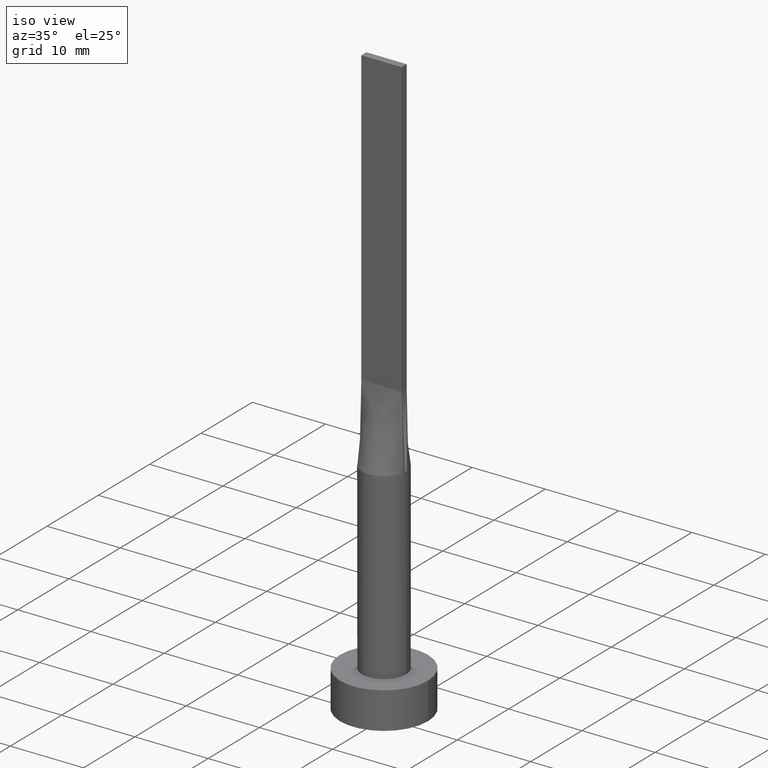
[diagram: clean part render]
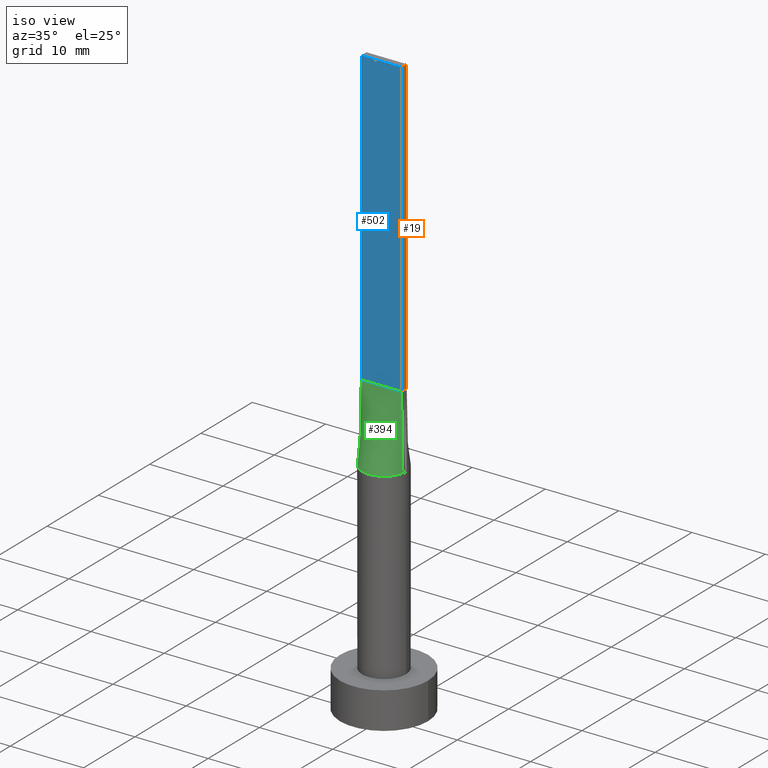
[diagram: same view with three faces highlighted in distinct colors, each labeled with its STEP entity id]
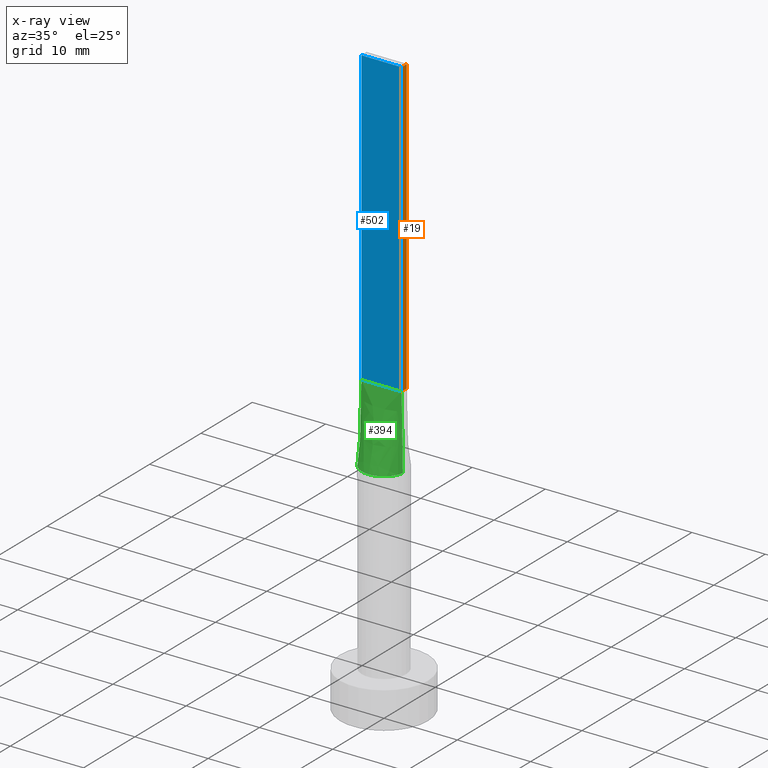
[diagram: x-ray of the same camera — body ghosted, the three highlighted faces saturated]
A machine part, iso view with three faces highlighted in distinct colors.
The next image is the same camera in x-ray (body ghosted, the three faces saturated) — at least one of them is partly hidden behind the body in this view.
Their STEP definitions:

[orange] entity #19 — the highlighted planar face has unit normal (-1, 0, 0).
#19 = ADVANCED_FACE ( 'NONE', ( #361 ), #216, .F. ) ;
#42 = CARTESIAN_POINT ( 'NONE',  ( 2.750000000000000000, 0.5000000000000002220, 80.00000000000000000 ) ) ;
#55 = CARTESIAN_POINT ( 'NONE',  ( 2.750000000000000000, 0.5000000000000002220, 80.00000000000000000 ) ) ;
#78 = DIRECTION ( 'NONE',  ( -1.000000000000000000, 0.000000000000000000, 0.000000000000000000 ) ) ;
#85 = EDGE_LOOP ( 'NONE', ( #296, #117, #448, #162 ) ) ;
#97 = LINE ( 'NONE', #55, #264 ) ;
#111 = LINE ( 'NONE', #477, #539 ) ;
#117 = ORIENTED_EDGE ( 'NONE', *, *, #217, .F. ) ;
#129 = VERTEX_POINT ( 'NONE', #147 ) ;
#147 = CARTESIAN_POINT ( 'NONE',  ( 2.750000000000000000, 0.5000000000000002220, 40.00000000000000000 ) ) ;
#162 = ORIENTED_EDGE ( 'NONE', *, *, #418, .T. ) ;
#216 = PLANE ( 'NONE',  #427 ) ;
#217 = EDGE_CURVE ( 'NONE', #426, #129, #97, .T. ) ;
#264 = VECTOR ( 'NONE', #417, 1000.000000000000000 ) ;
#296 = ORIENTED_EDGE ( 'NONE', *, *, #328, .T. ) ;
#311 = LINE ( 'NONE', #488, #408 ) ;
#314 = CARTESIAN_POINT ( 'NONE',  ( 2.750000000000000000, -0.4999999999999997780, 40.00000000000000000 ) ) ;
#315 = VERTEX_POINT ( 'NONE', #423 ) ;
#328 = EDGE_CURVE ( 'NONE', #396, #129, #111, .T. ) ;
#357 = LINE ( 'NONE', #534, #581 ) ;
#361 = FACE_OUTER_BOUND ( 'NONE', #85, .T. ) ;
#380 = DIRECTION ( 'NONE',  ( -0.000000000000000000, 1.000000000000000000, -0.000000000000000000 ) ) ;
#395 = DIRECTION ( 'NONE',  ( 0.000000000000000000, 1.000000000000000000, 0.000000000000000000 ) ) ;
#396 = VERTEX_POINT ( 'NONE', #314 ) ;
#408 = VECTOR ( 'NONE', #527, 1000.000000000000000 ) ;
#410 = EDGE_CURVE ( 'NONE', #315, #426, #357, .T. ) ;
#417 = DIRECTION ( 'NONE',  ( -0.000000000000000000, -0.000000000000000000, -1.000000000000000000 ) ) ;
#418 = EDGE_CURVE ( 'NONE', #315, #396, #311, .T. ) ;
#423 = CARTESIAN_POINT ( 'NONE',  ( 2.750000000000000000, -0.4999999999999997780, 80.00000000000000000 ) ) ;
#426 = VERTEX_POINT ( 'NONE', #42 ) ;
#427 = AXIS2_PLACEMENT_3D ( 'NONE', #528, #78, #455 ) ;
#448 = ORIENTED_EDGE ( 'NONE', *, *, #410, .F. ) ;
#455 = DIRECTION ( 'NONE',  ( 0.000000000000000000, 0.000000000000000000, 1.000000000000000000 ) ) ;
#477 = CARTESIAN_POINT ( 'NONE',  ( 2.750000000000000000, 0.5000000000000002220, 40.00000000000000000 ) ) ;
#488 = CARTESIAN_POINT ( 'NONE',  ( 2.750000000000000000, -0.4999999999999997780, 80.00000000000000000 ) ) ;
#527 = DIRECTION ( 'NONE',  ( -0.000000000000000000, -0.000000000000000000, -1.000000000000000000 ) ) ;
#528 = CARTESIAN_POINT ( 'NONE',  ( 2.750000000000000000, -0.4999999999999997780, 80.00000000000000000 ) ) ;
#534 = CARTESIAN_POINT ( 'NONE',  ( 2.750000000000000000, -0.4999999999999997780, 80.00000000000000000 ) ) ;
#539 = VECTOR ( 'NONE', #380, 1000.000000000000000 ) ;
#581 = VECTOR ( 'NONE', #395, 1000.000000000000000 ) ;

[blue] entity #502 — the highlighted planar face has unit normal (0, 1, -0).
#32 = EDGE_CURVE ( 'NONE', #335, #519, #494, .T. ) ;
#45 = CARTESIAN_POINT ( 'NONE',  ( -2.750000000000000000, -0.4999999999999994449, 80.00000000000000000 ) ) ;
#47 = DIRECTION ( 'NONE',  ( 1.000000000000000000, -5.913830031739115543E-17, 0.000000000000000000 ) ) ;
#82 = ORIENTED_EDGE ( 'NONE', *, *, #418, .F. ) ;
#130 = VECTOR ( 'NONE', #571, 1000.000000000000000 ) ;
#136 = FACE_OUTER_BOUND ( 'NONE', #339, .T. ) ;
#139 = PLANE ( 'NONE',  #523 ) ;
#196 = CARTESIAN_POINT ( 'NONE',  ( -2.750000000000000000, -0.4999999999999994449, 80.00000000000000000 ) ) ;
#204 = ORIENTED_EDGE ( 'NONE', *, *, #439, .T. ) ;
#220 = VECTOR ( 'NONE', #269, 1000.000000000000000 ) ;
#226 = EDGE_CURVE ( 'NONE', #335, #315, #278, .T. ) ;
#263 = ORIENTED_EDGE ( 'NONE', *, *, #32, .T. ) ;
#269 = DIRECTION ( 'NONE',  ( 1.000000000000000000, -5.913830031739115543E-17, 0.000000000000000000 ) ) ;
#278 = LINE ( 'NONE', #462, #352 ) ;
#311 = LINE ( 'NONE', #488, #408 ) ;
#314 = CARTESIAN_POINT ( 'NONE',  ( 2.750000000000000000, -0.4999999999999997780, 40.00000000000000000 ) ) ;
#315 = VERTEX_POINT ( 'NONE', #423 ) ;
#316 = CARTESIAN_POINT ( 'NONE',  ( -2.750000000000000000, -0.4999999999999994449, 80.00000000000000000 ) ) ;
#322 = DIRECTION ( 'NONE',  ( 5.913830031739115543E-17, 1.000000000000000000, -0.000000000000000000 ) ) ;
#335 = VERTEX_POINT ( 'NONE', #196 ) ;
#339 = EDGE_LOOP ( 'NONE', ( #204, #82, #474, #263 ) ) ;
#352 = VECTOR ( 'NONE', #47, 1000.000000000000000 ) ;
#368 = DIRECTION ( 'NONE',  ( -1.000000000000000000, 5.913830031739115543E-17, 0.000000000000000000 ) ) ;
#396 = VERTEX_POINT ( 'NONE', #314 ) ;
#408 = VECTOR ( 'NONE', #527, 1000.000000000000000 ) ;
#414 = LINE ( 'NONE', #546, #220 ) ;
#418 = EDGE_CURVE ( 'NONE', #315, #396, #311, .T. ) ;
#423 = CARTESIAN_POINT ( 'NONE',  ( 2.750000000000000000, -0.4999999999999997780, 80.00000000000000000 ) ) ;
#439 = EDGE_CURVE ( 'NONE', #519, #396, #414, .T. ) ;
#462 = CARTESIAN_POINT ( 'NONE',  ( -2.750000000000000000, -0.4999999999999994449, 80.00000000000000000 ) ) ;
#474 = ORIENTED_EDGE ( 'NONE', *, *, #226, .F. ) ;
#488 = CARTESIAN_POINT ( 'NONE',  ( 2.750000000000000000, -0.4999999999999997780, 80.00000000000000000 ) ) ;
#494 = LINE ( 'NONE', #45, #130 ) ;
#496 = CARTESIAN_POINT ( 'NONE',  ( -2.750000000000000000, -0.4999999999999994449, 40.00000000000000000 ) ) ;
#502 = ADVANCED_FACE ( 'NONE', ( #136 ), #139, .F. ) ;
#519 = VERTEX_POINT ( 'NONE', #496 ) ;
#523 = AXIS2_PLACEMENT_3D ( 'NONE', #316, #322, #368 ) ;
#527 = DIRECTION ( 'NONE',  ( -0.000000000000000000, -0.000000000000000000, -1.000000000000000000 ) ) ;
#546 = CARTESIAN_POINT ( 'NONE',  ( -2.750000000000000000, -0.4999999999999994449, 40.00000000000000000 ) ) ;
#571 = DIRECTION ( 'NONE',  ( -0.000000000000000000, -0.000000000000000000, -1.000000000000000000 ) ) ;

[green] entity #394 — the highlighted face is a freeform B-spline surface patch.
#20 = EDGE_LOOP ( 'NONE', ( #211, #403, #489, #197 ) ) ;
#30 = CARTESIAN_POINT ( 'NONE',  ( -2.567367750129864845, -1.580669302822274691, 30.00000000000001066 ) ) ;
#33 = CARTESIAN_POINT ( 'NONE',  ( -1.882426928433514224, -2.362790634184934291, 30.00000000000000355 ) ) ;
#36 = CARTESIAN_POINT ( 'NONE',  ( -0.4172881767044983592, -2.999999999999999556, 30.00000000000000355 ) ) ;
#39 = CARTESIAN_POINT ( 'NONE',  ( 0.8331239790496235420, -2.909606296598777231, 30.00000000000000000 ) ) ;
#58 = LINE ( 'NONE', #415, #112 ) ;
#83 = CARTESIAN_POINT ( 'NONE',  ( -0.8331239790496242081, -2.909606296598777231, 30.00000000000000355 ) ) ;
#93 = CARTESIAN_POINT ( 'NONE',  ( 0.000000000000000000, 0.000000000000000000, 30.00000000000000355 ) ) ;
#110 = EDGE_CURVE ( 'NONE', #519, #471, #58, .T. ) ;
#112 = VECTOR ( 'NONE', #459, 1000.000000000000114 ) ;
#123 = CARTESIAN_POINT ( 'NONE',  ( -0.4583333333333340365, -0.4999999999999995559, 39.99999999999999289 ) ) ;
#128 = CARTESIAN_POINT ( 'NONE',  ( 0.2291666666666659635, -0.4999999999999995559, 39.99999999999999289 ) ) ;
#131 = CARTESIAN_POINT ( 'NONE',  ( 0.4583333333333325932, -0.4999999999999995559, 39.99999999999999289 ) ) ;
#143 = EDGE_CURVE ( 'NONE', #471, #560, #509, .T. ) ;
#163 = CARTESIAN_POINT ( 'NONE',  ( 2.907609730299723250, -0.7786563145999499946, 30.00000000000000355 ) ) ;
#168 = CARTESIAN_POINT ( 'NONE',  ( 1.566158656300001395, -2.589797565249319256, 30.00000000000000000 ) ) ;
#172 = CARTESIAN_POINT ( 'NONE',  ( -0.2291666666666674346, -0.4999999999999995559, 40.00000000000000000 ) ) ;
#178 = DIRECTION ( 'NONE',  ( 1.000000000000000000, 0.000000000000000000, 0.000000000000000000 ) ) ;
#186 = VECTOR ( 'NONE', #413, 1000.000000000000114 ) ;
#197 = ORIENTED_EDGE ( 'NONE', *, *, #110, .T. ) ;
#211 = ORIENTED_EDGE ( 'NONE', *, *, #143, .T. ) ;
#220 = VECTOR ( 'NONE', #269, 1000.000000000000000 ) ;
#223 = CARTESIAN_POINT ( 'NONE',  ( 2.850804865149861200, -0.5183281572999745013, 35.00000000000000000 ) ) ;
#233 = B_SPLINE_SURFACE_WITH_KNOTS ( 'NONE', 3, 1, ( 
 ( #473, #430 ),
 ( #338, #518 ),
 ( #295, #475 ),
 ( #30, #449 ),
 ( #576, #484 ),
 ( #33, #266 ),
 ( #529, #447 ),
 ( #83, #123 ),
 ( #36, #172 ),
 ( #262, #128 ),
 ( #39, #131 ),
 ( #168, #486 ),
 ( #397, #404 ),
 ( #303, #402 ),
 ( #568, #359 ),
 ( #350, #482 ),
 ( #163, #537 ),
 ( #354, #308 ) ),
 .UNSPECIFIED., .F., .F., .F.,
 ( 4, 2, 2, 2, 2, 2, 2, 2, 4 ),
 ( 2, 2 ),
 ( 0.000000000000000000, 0.1250000000000000000, 0.2500000000000000000, 0.3750000000000000000, 0.5000000000000000000, 0.6250000000000000000, 0.7500000000000000000, 0.8750000000000000000, 1.000000000000000000 ),
 ( 0.000000000000000000, 1.000000000000000000 ),
 .UNSPECIFIED. ) ;
#236 = EDGE_CURVE ( 'NONE', #560, #396, #421, .T. ) ;
#262 = CARTESIAN_POINT ( 'NONE',  ( 0.4172881767044969714, -3.000000000000000444, 29.99999999999999645 ) ) ;
#266 = CARTESIAN_POINT ( 'NONE',  ( -1.145833333333333703, -0.4999999999999995559, 39.99999999999999289 ) ) ;
#269 = DIRECTION ( 'NONE',  ( 1.000000000000000000, -5.913830031739115543E-17, 0.000000000000000000 ) ) ;
#290 = FACE_OUTER_BOUND ( 'NONE', #20, .T. ) ;
#294 = CARTESIAN_POINT ( 'NONE',  ( 2.951896064709005785, -0.5367080392066734262, 30.00000000000000355 ) ) ;
#295 = CARTESIAN_POINT ( 'NONE',  ( -2.829409566978767110, -1.041313647073048854, 30.00000000000001421 ) ) ;
#303 = CARTESIAN_POINT ( 'NONE',  ( 2.382399439808186692, -1.857547746650222154, 30.00000000000001066 ) ) ;
#308 = CARTESIAN_POINT ( 'NONE',  ( 2.750000000000000000, -0.4999999999999997780, 40.00000000000000000 ) ) ;
#314 = CARTESIAN_POINT ( 'NONE',  ( 2.750000000000000000, -0.4999999999999997780, 40.00000000000000000 ) ) ;
#326 = DIRECTION ( 'NONE',  ( 0.000000000000000000, 0.000000000000000000, 1.000000000000000000 ) ) ;
#338 = CARTESIAN_POINT ( 'NONE',  ( -2.907609730299723250, -0.7786563145999485513, 29.99999999999999645 ) ) ;
#350 = CARTESIAN_POINT ( 'NONE',  ( 2.829409566978765334, -1.041313647073049742, 30.00000000000001066 ) ) ;
#354 = CARTESIAN_POINT ( 'NONE',  ( 2.951609730299722401, -0.5366563145999492246, 30.00000000000000355 ) ) ;
#359 = CARTESIAN_POINT ( 'NONE',  ( 1.833333333333332593, -0.4999999999999997780, 39.99999999999999289 ) ) ;
#394 = ADVANCED_FACE ( 'NONE', ( #290 ), #233, .T. ) ;
#396 = VERTEX_POINT ( 'NONE', #314 ) ;
#397 = CARTESIAN_POINT ( 'NONE',  ( 1.882426928433513114, -2.362790634184936511, 30.00000000000000711 ) ) ;
#402 = CARTESIAN_POINT ( 'NONE',  ( 1.604166666666666075, -0.4999999999999997780, 39.99999999999999289 ) ) ;
#403 = ORIENTED_EDGE ( 'NONE', *, *, #236, .T. ) ;
#404 = CARTESIAN_POINT ( 'NONE',  ( 1.145833333333332371, -0.4999999999999996669, 39.99999999999999289 ) ) ;
#406 = CARTESIAN_POINT ( 'NONE',  ( -2.951885853416577277, -0.5367063210726346068, 30.00000000000000355 ) ) ;
#413 = DIRECTION ( 'NONE',  ( -0.02015674154923146819, 0.003664862099860249911, 0.9997901152521495582 ) ) ;
#414 = LINE ( 'NONE', #546, #220 ) ;
#415 = CARTESIAN_POINT ( 'NONE',  ( -2.850804865149861644, -0.5183281572999741682, 35.00000000000000000 ) ) ;
#421 = LINE ( 'NONE', #223, #186 ) ;
#430 = CARTESIAN_POINT ( 'NONE',  ( -2.750000000000000000, -0.4999999999999994449, 40.00000000000000000 ) ) ;
#439 = EDGE_CURVE ( 'NONE', #519, #396, #414, .T. ) ;
#447 = CARTESIAN_POINT ( 'NONE',  ( -0.9166666666666671848, -0.4999999999999995559, 39.99999999999999289 ) ) ;
#449 = CARTESIAN_POINT ( 'NONE',  ( -1.833333333333333481, -0.4999999999999995559, 39.99999999999999289 ) ) ;
#459 = DIRECTION ( 'NONE',  ( -0.02015674154923150635, -0.003664862099860238635, -0.9997901152521495582 ) ) ;
#471 = VERTEX_POINT ( 'NONE', #406 ) ;
#473 = CARTESIAN_POINT ( 'NONE',  ( -2.951609730299722845, -0.5366563145999487805, 30.00000000000000355 ) ) ;
#475 = CARTESIAN_POINT ( 'NONE',  ( -2.291666666666666519, -0.4999999999999994449, 39.99999999999999289 ) ) ;
#482 = CARTESIAN_POINT ( 'NONE',  ( 2.291666666666666075, -0.4999999999999997780, 39.99999999999999289 ) ) ;
#484 = CARTESIAN_POINT ( 'NONE',  ( -1.604166666666666963, -0.4999999999999995559, 39.99999999999999289 ) ) ;
#486 = CARTESIAN_POINT ( 'NONE',  ( 0.9166666666666658525, -0.4999999999999995559, 39.99999999999999289 ) ) ;
#489 = ORIENTED_EDGE ( 'NONE', *, *, #439, .F. ) ;
#496 = CARTESIAN_POINT ( 'NONE',  ( -2.750000000000000000, -0.4999999999999994449, 40.00000000000000000 ) ) ;
#509 = CIRCLE ( 'NONE', #578, 3.000000000000000444 ) ;
#518 = CARTESIAN_POINT ( 'NONE',  ( -2.520833333333333037, -0.4999999999999994449, 39.99999999999999289 ) ) ;
#519 = VERTEX_POINT ( 'NONE', #496 ) ;
#529 = CARTESIAN_POINT ( 'NONE',  ( -1.566158656300002727, -2.589797565249318811, 30.00000000000000000 ) ) ;
#537 = CARTESIAN_POINT ( 'NONE',  ( 2.520833333333333037, -0.4999999999999997780, 39.99999999999999289 ) ) ;
#546 = CARTESIAN_POINT ( 'NONE',  ( -2.750000000000000000, -0.4999999999999994449, 40.00000000000000000 ) ) ;
#560 = VERTEX_POINT ( 'NONE', #294 ) ;
#568 = CARTESIAN_POINT ( 'NONE',  ( 2.567367750129864401, -1.580669302822276023, 30.00000000000001421 ) ) ;
#576 = CARTESIAN_POINT ( 'NONE',  ( -2.382399439808189356, -1.857547746650220599, 30.00000000000000711 ) ) ;
#578 = AXIS2_PLACEMENT_3D ( 'NONE', #93, #326, #178 ) ;